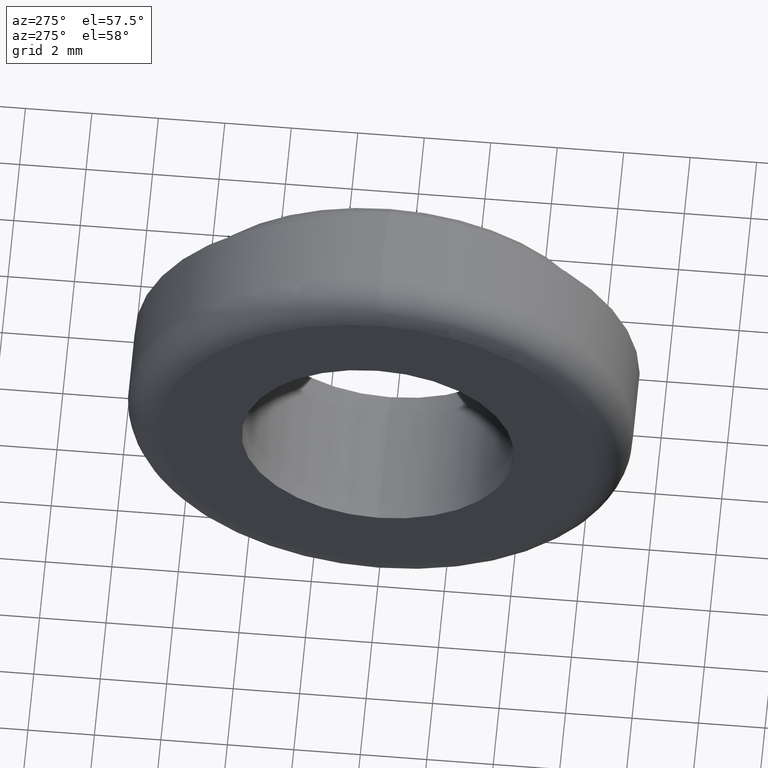
[diagram: clean part render]
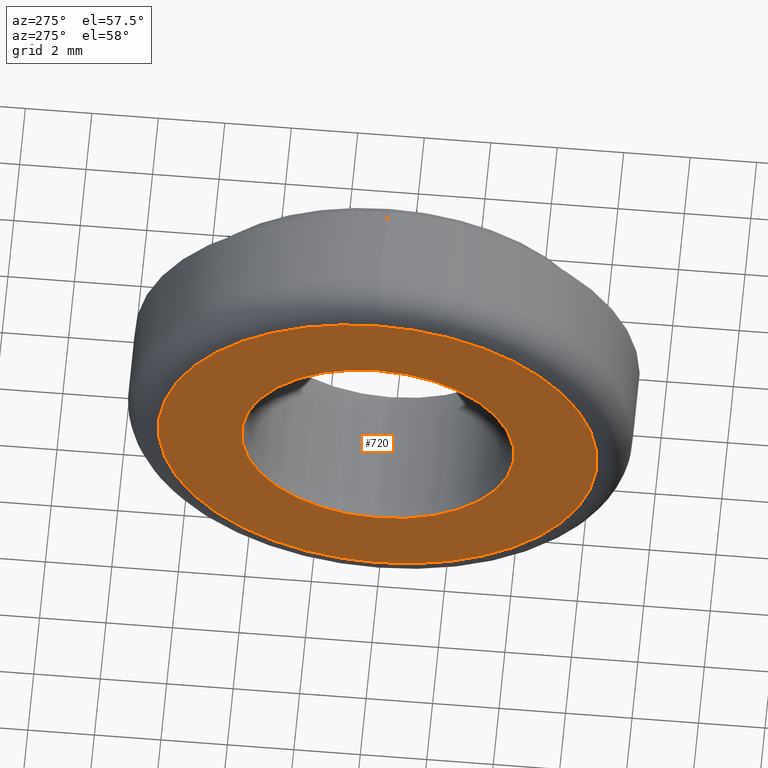
[diagram: same view with one face highlighted and labeled with its STEP entity id]
A machine part, auxiliary view. The second image highlights one B-rep face of the part: STEP entity #720.
In plain terms, the highlighted planar face has unit normal (1, 0, 0).
Its self-contained STEP definition (entity closure, byte-faithful):
#63 = DIRECTION ( 'NONE',  ( 0.0000000000000000000, 0.0000000000000000000, -1.000000000000000000 ) ) ;
#71 = DIRECTION ( 'NONE',  ( -1.000000000000000000, -0.0000000000000000000, -0.0000000000000000000 ) ) ;
#92 = DIRECTION ( 'NONE',  ( 1.000000000000000000, 0.0000000000000000000, 0.0000000000000000000 ) ) ;
#93 = EDGE_CURVE ( 'NONE', #135, #229, #181, .T. ) ;
#112 = CARTESIAN_POINT ( 'NONE',  ( 0.0000000000000000000, 0.0000000000000000000, 4.099999999999999600 ) ) ;
#115 = EDGE_CURVE ( 'NONE', #224, #619, #478, .T. ) ;
#121 = CARTESIAN_POINT ( 'NONE',  ( 0.0000000000000000000, 0.0000000000000000000, -6.599999999999999600 ) ) ;
#129 = CARTESIAN_POINT ( 'NONE',  ( 0.0000000000000000000, 5.021051876504147400E-016, -4.099999999999999600 ) ) ;
#135 = VERTEX_POINT ( 'NONE', #112 ) ;
#139 = ORIENTED_EDGE ( 'NONE', *, *, #93, .T. ) ;
#143 = AXIS2_PLACEMENT_3D ( 'NONE', #378, #716, #63 ) ;
#176 = CARTESIAN_POINT ( 'NONE',  ( 0.0000000000000000000, 0.0000000000000000000, 0.0000000000000000000 ) ) ;
#181 = CIRCLE ( 'NONE', #471, 4.099999999999999600 ) ;
#206 = AXIS2_PLACEMENT_3D ( 'NONE', #176, #238, #531 ) ;
#217 = DIRECTION ( 'NONE',  ( 0.0000000000000000000, 0.0000000000000000000, -1.000000000000000000 ) ) ;
#218 = EDGE_CURVE ( 'NONE', #229, #135, #382, .T. ) ;
#224 = VERTEX_POINT ( 'NONE', #294 ) ;
#229 = VERTEX_POINT ( 'NONE', #129 ) ;
#238 = DIRECTION ( 'NONE',  ( -1.000000000000000000, -0.0000000000000000000, -0.0000000000000000000 ) ) ;
#265 = AXIS2_PLACEMENT_3D ( 'NONE', #682, #71, #217 ) ;
#270 = EDGE_LOOP ( 'NONE', ( #434, #598 ) ) ;
#276 = DIRECTION ( 'NONE',  ( 1.000000000000000000, 0.0000000000000000000, 0.0000000000000000000 ) ) ;
#294 = CARTESIAN_POINT ( 'NONE',  ( 0.0000000000000000000, 8.694992273946207700E-016, 6.599999999999999600 ) ) ;
#323 = DIRECTION ( 'NONE',  ( 0.0000000000000000000, 0.0000000000000000000, -1.000000000000000000 ) ) ;
#331 = CARTESIAN_POINT ( 'NONE',  ( 0.0000000000000000000, 0.0000000000000000000, 0.0000000000000000000 ) ) ;
#343 = CARTESIAN_POINT ( 'NONE',  ( 0.0000000000000000000, 0.0000000000000000000, 0.0000000000000000000 ) ) ;
#378 = CARTESIAN_POINT ( 'NONE',  ( 0.0000000000000000000, 0.0000000000000000000, 0.0000000000000000000 ) ) ;
#382 = CIRCLE ( 'NONE', #671, 4.099999999999999600 ) ;
#434 = ORIENTED_EDGE ( 'NONE', *, *, #569, .T. ) ;
#467 = FACE_BOUND ( 'NONE', #493, .T. ) ;
#471 = AXIS2_PLACEMENT_3D ( 'NONE', #331, #276, #323 ) ;
#478 = CIRCLE ( 'NONE', #206, 6.599999999999999600 ) ;
#493 = EDGE_LOOP ( 'NONE', ( #139, #505 ) ) ;
#505 = ORIENTED_EDGE ( 'NONE', *, *, #218, .T. ) ;
#531 = DIRECTION ( 'NONE',  ( 0.0000000000000000000, 0.0000000000000000000, -1.000000000000000000 ) ) ;
#569 = EDGE_CURVE ( 'NONE', #619, #224, #659, .T. ) ;
#598 = ORIENTED_EDGE ( 'NONE', *, *, #115, .T. ) ;
#619 = VERTEX_POINT ( 'NONE', #121 ) ;
#624 = PLANE ( 'NONE',  #143 ) ;
#643 = DIRECTION ( 'NONE',  ( 0.0000000000000000000, 0.0000000000000000000, -1.000000000000000000 ) ) ;
#644 = FACE_OUTER_BOUND ( 'NONE', #270, .T. ) ;
#659 = CIRCLE ( 'NONE', #265, 6.599999999999999600 ) ;
#671 = AXIS2_PLACEMENT_3D ( 'NONE', #343, #92, #643 ) ;
#682 = CARTESIAN_POINT ( 'NONE',  ( 0.0000000000000000000, 0.0000000000000000000, 0.0000000000000000000 ) ) ;
#716 = DIRECTION ( 'NONE',  ( 1.000000000000000000, 0.0000000000000000000, 0.0000000000000000000 ) ) ;
#720 = ADVANCED_FACE ( 'NONE', ( #467, #644 ), #624, .F. ) ;